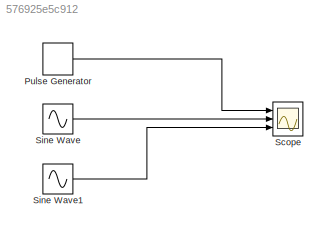
MODEL slx_576925e5c912
KIND model
CONFIG AbsTol = auto
CONFIG EnableMultiTasking = off
CONFIG FixedStep = auto
CONFIG MaxStep = auto
CONFIG MinStep = auto
CONFIG RelTol = 1e-3
CONFIG SampleTimeConstraint = Unconstrained
CONFIG Solver = VariableStepAuto
CONFIG SolverName = VariableStepAuto
CONFIG StartTime = 0.0
CONFIG StopTime = 10.0
BLOCK [DiscretePulseGenerator] Pulse Generator
  Amplitude = 2
  Period = 1
  Ports = [0, 1]
  PulseType = Time based
  PulseWidth = 50
BLOCK [Scope] Scope
  Floating = off
  NumInputPorts = 3
  Ports = [3]
  ScopeSpecificationString = Simulink.scopes.TimeScopeBlockCfg('CurrentConfiguration', extmgr.ConfigurationSet(extmgr.Configuration('Core','General UI',true),extmgr.Configuration('Core','Source UI',true),extmgr.Configuration('Sources','WiredSimulink',true),extmgr.Configuration('Visuals','Time Domain',true,'SerializedDisplays',{struct('MinYLimReal','-1.37499','MaxYLimReal','2.375','YLabelReal','','MinYLimMag','0.00000','MaxYLi...<+1405ch>
BLOCK [Sin] Sine Wave
  Frequency = 2
  Ports = [0, 1]
  SampleTime = 0.2
BLOCK [Sin] Sine Wave1
  Frequency = 2
  Ports = [0, 1]
  SampleTime = 0
LINE Pulse Generator:1 -> Scope:1
LINE Sine Wave1:1 -> Scope:3
LINE Sine Wave:1 -> Scope:2
